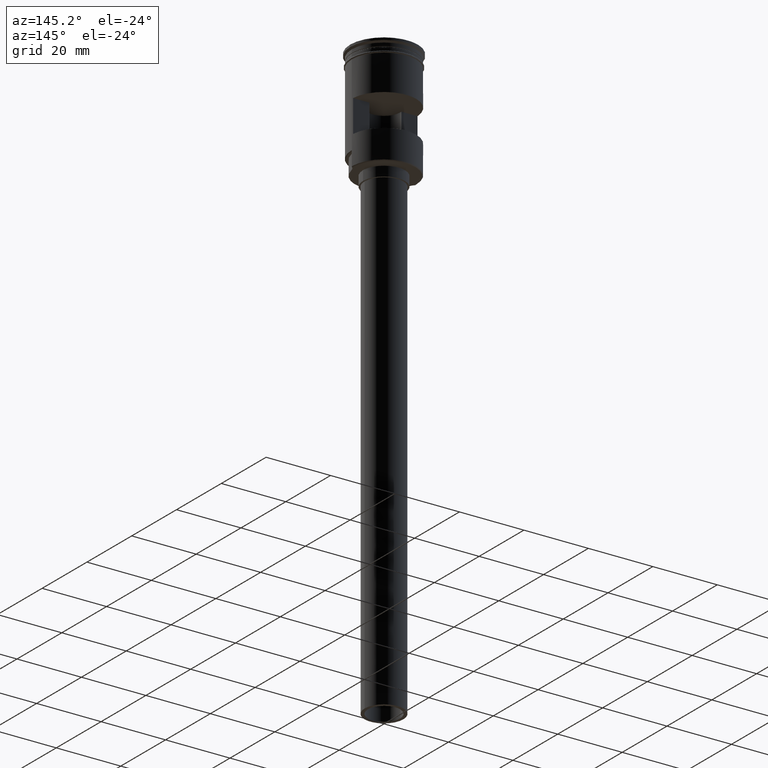
[diagram: clean part render]
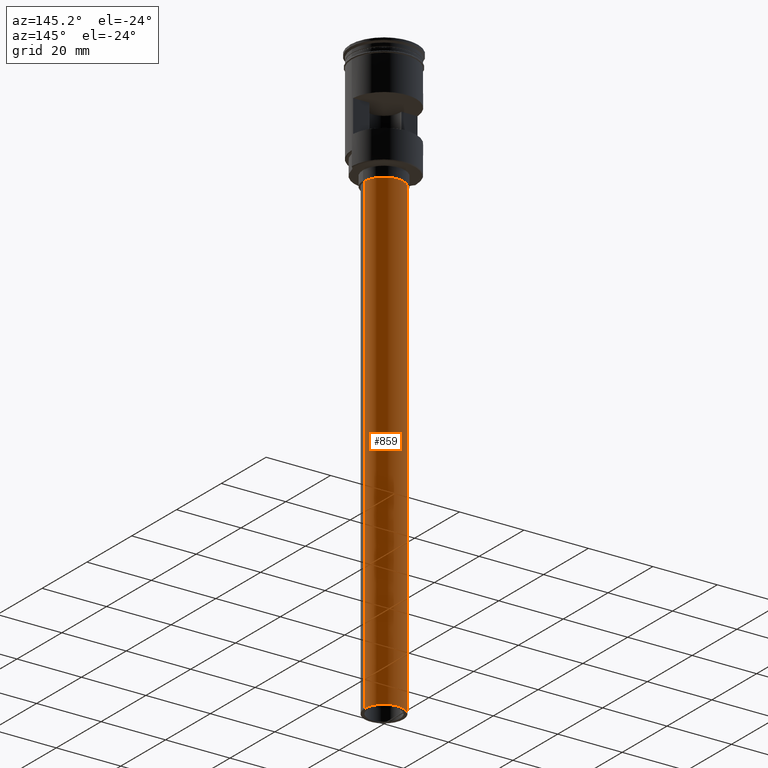
[diagram: same view with one face highlighted and labeled with its STEP entity id]
A machine part, auxiliary view. The second image highlights one B-rep face of the part: STEP entity #859.
In plain terms, the highlighted cylindrical surface (edge-blend (fillet) strip) has radius 6 mm, axis along (-0, -0, 1).
Its self-contained STEP definition (entity closure, byte-faithful):
#2 = CIRCLE ( 'NONE', #1119, 6.000000000000000888 ) ;
#43 = DIRECTION ( 'NONE',  ( -1.000000000000000000, 0.000000000000000000, 0.000000000000000000 ) ) ;
#56 = CYLINDRICAL_SURFACE ( 'NONE', #1563, 6.000000000000000888 ) ;
#102 = CARTESIAN_POINT ( 'NONE',  ( -6.000000000000000888, 7.347880794884120722E-16, -37.00000000000000000 ) ) ;
#112 = EDGE_CURVE ( 'NONE', #284, #477, #2, .T. ) ;
#134 = CIRCLE ( 'NONE', #1041, 6.000000000000000888 ) ;
#150 = EDGE_LOOP ( 'NONE', ( #1091, #1390, #513, #809 ) ) ;
#175 = EDGE_CURVE ( 'NONE', #1139, #284, #824, .T. ) ;
#186 = CARTESIAN_POINT ( 'NONE',  ( -6.000000000000000888, 7.347880794884120722E-16, -184.0000000000000000 ) ) ;
#284 = VERTEX_POINT ( 'NONE', #102 ) ;
#298 = DIRECTION ( 'NONE',  ( -0.000000000000000000, -0.000000000000000000, 1.000000000000000000 ) ) ;
#399 = EDGE_CURVE ( 'NONE', #1363, #477, #1011, .T. ) ;
#477 = VERTEX_POINT ( 'NONE', #642 ) ;
#513 = ORIENTED_EDGE ( 'NONE', *, *, #112, .T. ) ;
#568 = DIRECTION ( 'NONE',  ( -1.000000000000000000, 0.000000000000000000, 0.000000000000000000 ) ) ;
#642 = CARTESIAN_POINT ( 'NONE',  ( 6.000000000000000888, 0.000000000000000000, -37.00000000000000000 ) ) ;
#682 = DIRECTION ( 'NONE',  ( 0.000000000000000000, 0.000000000000000000, -1.000000000000000000 ) ) ;
#809 = ORIENTED_EDGE ( 'NONE', *, *, #399, .F. ) ;
#813 = CARTESIAN_POINT ( 'NONE',  ( 0.000000000000000000, 0.000000000000000000, -37.00000000000000000 ) ) ;
#824 = LINE ( 'NONE', #1061, #1297 ) ;
#859 = ADVANCED_FACE ( 'NONE', ( #1032 ), #56, .T. ) ;
#951 = DIRECTION ( 'NONE',  ( 0.000000000000000000, 0.000000000000000000, -1.000000000000000000 ) ) ;
#994 = VECTOR ( 'NONE', #1305, 1000.000000000000000 ) ;
#1011 = LINE ( 'NONE', #1286, #994 ) ;
#1032 = FACE_OUTER_BOUND ( 'NONE', #150, .T. ) ;
#1041 = AXIS2_PLACEMENT_3D ( 'NONE', #1384, #682, #43 ) ;
#1057 = DIRECTION ( 'NONE',  ( 1.000000000000000000, 0.000000000000000000, 0.000000000000000000 ) ) ;
#1061 = CARTESIAN_POINT ( 'NONE',  ( -6.000000000000000888, 7.347880794884120722E-16, -184.0000000000000000 ) ) ;
#1090 = CARTESIAN_POINT ( 'NONE',  ( 6.000000000000000888, 0.000000000000000000, -184.0000000000000000 ) ) ;
#1091 = ORIENTED_EDGE ( 'NONE', *, *, #1170, .F. ) ;
#1119 = AXIS2_PLACEMENT_3D ( 'NONE', #813, #951, #568 ) ;
#1139 = VERTEX_POINT ( 'NONE', #186 ) ;
#1159 = CARTESIAN_POINT ( 'NONE',  ( 0.000000000000000000, 0.000000000000000000, -184.0000000000000000 ) ) ;
#1170 = EDGE_CURVE ( 'NONE', #1139, #1363, #134, .T. ) ;
#1286 = CARTESIAN_POINT ( 'NONE',  ( 6.000000000000000888, 0.000000000000000000, -184.0000000000000000 ) ) ;
#1297 = VECTOR ( 'NONE', #1321, 1000.000000000000000 ) ;
#1305 = DIRECTION ( 'NONE',  ( -0.000000000000000000, -0.000000000000000000, 1.000000000000000000 ) ) ;
#1321 = DIRECTION ( 'NONE',  ( -0.000000000000000000, -0.000000000000000000, 1.000000000000000000 ) ) ;
#1363 = VERTEX_POINT ( 'NONE', #1090 ) ;
#1384 = CARTESIAN_POINT ( 'NONE',  ( 0.000000000000000000, 0.000000000000000000, -184.0000000000000000 ) ) ;
#1390 = ORIENTED_EDGE ( 'NONE', *, *, #175, .T. ) ;
#1563 = AXIS2_PLACEMENT_3D ( 'NONE', #1159, #298, #1057 ) ;